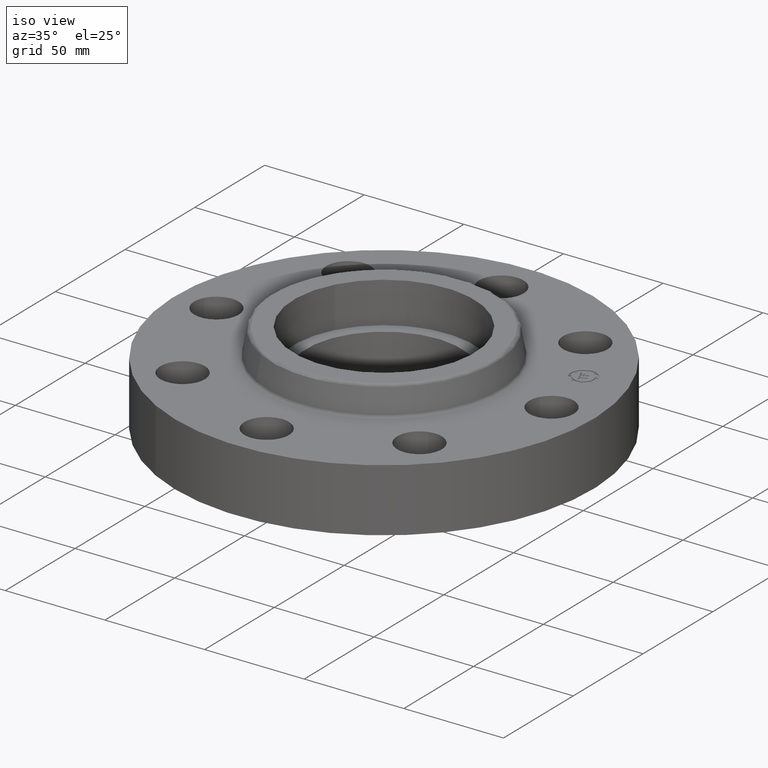
[diagram: clean part render]
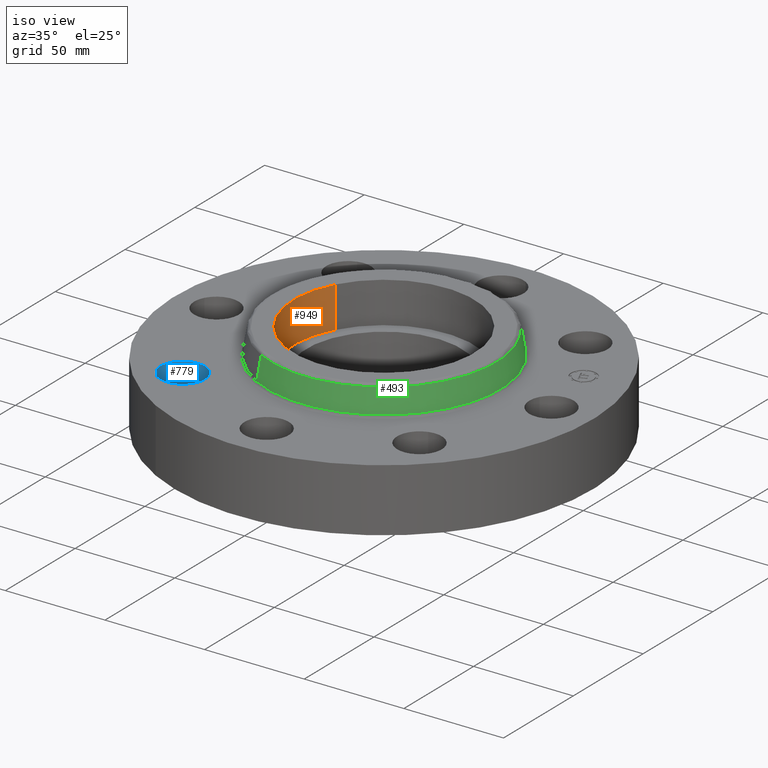
[diagram: same view with three faces highlighted in distinct colors, each labeled with its STEP entity id]
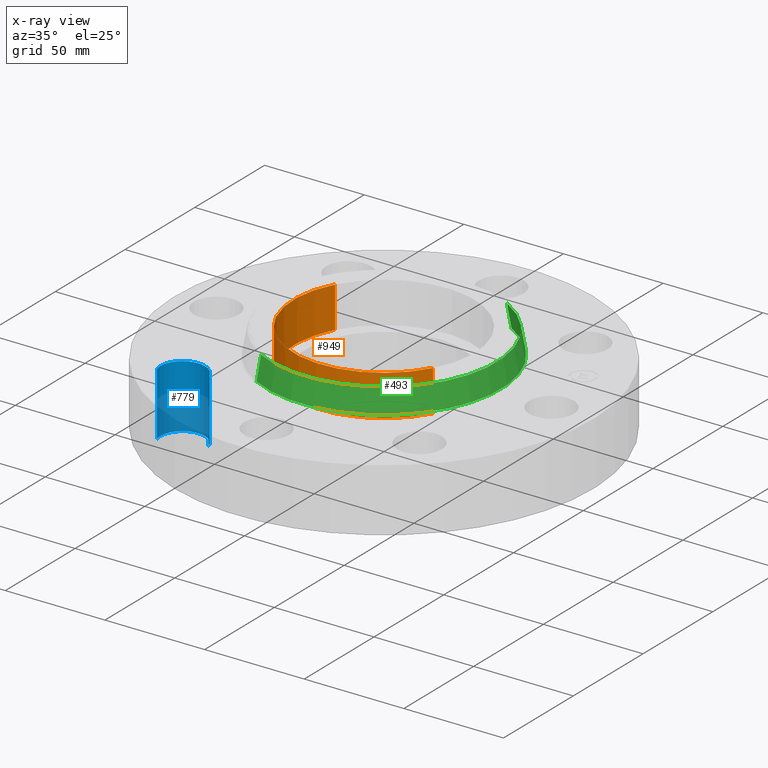
[diagram: x-ray of the same camera — body ghosted, the three highlighted faces saturated]
A machine part, iso view with three faces highlighted in distinct colors.
The next image is the same camera in x-ray (body ghosted, the three faces saturated) — at least one of them is partly hidden behind the body in this view.
Their STEP definitions:

[orange] entity #949 — the highlighted cylindrical surface (partial cylindrical patch) has radius 45.339 mm, axis along (0, 0, -1).
#51=AXIS2_PLACEMENT_3D('Circle Axis2P3D',#49,#50,$) ;
#569=AXIS2_PLACEMENT_3D('Circle Axis2P3D',#567,#568,$) ;
#924=AXIS2_PLACEMENT_3D('Cylinder Axis2P3D',#921,#922,#923) ;
#44=CARTESIAN_POINT('Vertex',(-1.56648487298,0.855774586412,1.)) ;
#46=CARTESIAN_POINT('Vertex',(1.56648487298,-0.855774586412,1.)) ;
#49=CARTESIAN_POINT('Axis2P3D Location',(1.39870617276E-016,3.84644197508E-016,1.)) ;
#562=CARTESIAN_POINT('Vertex',(-1.56648487298,0.855774586412,1.81000000001)) ;
#564=CARTESIAN_POINT('Vertex',(1.56648487298,-0.855774586412,1.81000000001)) ;
#567=CARTESIAN_POINT('Axis2P3D Location',(1.39870617276E-016,-5.59482469102E-016,1.81000000001)) ;
#921=CARTESIAN_POINT('Axis2P3D Location',(1.39870617276E-016,3.84644197508E-016,1.80606299213)) ;
#926=CARTESIAN_POINT('Line Origine',(-1.56648487298,0.855774586412,1.40500000001)) ;
#931=CARTESIAN_POINT('Line Origine',(1.56648487298,-0.855774586412,1.40500000001)) ;
#50=DIRECTION('Axis2P3D Direction',(0.,0.,-0.0393700787402)) ;
#568=DIRECTION('Axis2P3D Direction',(0.,0.,-0.0393700787402)) ;
#922=DIRECTION('Axis2P3D Direction',(0.,0.,-0.0393700787402)) ;
#923=DIRECTION('Axis2P3D XDirection',(0.0345504945626,-0.0188750212049,0.)) ;
#927=DIRECTION('Vector Direction',(0.,0.,-0.0393700787402)) ;
#932=DIRECTION('Vector Direction',(0.,0.,-0.0393700787402)) ;
#928=VECTOR('Line Direction',#927,0.0393700787402) ;
#933=VECTOR('Line Direction',#932,0.0393700787402) ;
#944=ORIENTED_EDGE('',*,*,#571,.F.) ;
#945=ORIENTED_EDGE('',*,*,#935,.F.) ;
#946=ORIENTED_EDGE('',*,*,#53,.T.) ;
#947=ORIENTED_EDGE('',*,*,#930,.T.) ;
#949=ADVANCED_FACE('PartBody',(#948),#925,.F.) ;
#52=CIRCLE('generated circle',#51,1.78500000001) ;
#570=CIRCLE('generated circle',#569,1.78500000001) ;
#925=CYLINDRICAL_SURFACE('generated cylinder',#924,1.78500000001) ;
#53=EDGE_CURVE('',#47,#45,#52,.T.) ;
#571=EDGE_CURVE('',#565,#563,#570,.T.) ;
#930=EDGE_CURVE('',#45,#563,#929,.F.) ;
#935=EDGE_CURVE('',#47,#565,#934,.F.) ;
#943=EDGE_LOOP('',(#944,#945,#946,#947)) ;
#948=FACE_OUTER_BOUND('',#943,.T.) ;
#929=LINE('Line',#926,#928) ;
#934=LINE('Line',#931,#933) ;
#45=VERTEX_POINT('',#44) ;
#47=VERTEX_POINT('',#46) ;
#563=VERTEX_POINT('',#562) ;
#565=VERTEX_POINT('',#564) ;

[blue] entity #779 — the highlighted cylindrical surface (edge-blend (fillet) strip) has radius 11.176 mm, axis along (-0, 0, -1).
#283=AXIS2_PLACEMENT_3D('Circle Axis2P3D',#281,#282,$) ;
#752=AXIS2_PLACEMENT_3D('Cylinder Axis2P3D',#749,#750,#751) ;
#770=AXIS2_PLACEMENT_3D('Circle Axis2P3D',#768,#769,$) ;
#276=CARTESIAN_POINT('Vertex',(-1.91832160854,-2.21664605203,0.)) ;
#278=CARTESIAN_POINT('Vertex',(-2.76272528293,-2.46440083944,0.)) ;
#281=CARTESIAN_POINT('Axis2P3D Location',(-2.34052344574,-2.34052344574,0.)) ;
#749=CARTESIAN_POINT('Axis2P3D Location',(-2.34052344574,-2.34052344574,1.24606299213)) ;
#754=CARTESIAN_POINT('Line Origine',(-2.76272528293,-2.46440083944,0.625000000003)) ;
#758=CARTESIAN_POINT('Vertex',(-2.76272528293,-2.46440083944,1.25000000001)) ;
#761=CARTESIAN_POINT('Line Origine',(-1.91832160854,-2.21664605203,0.625000000003)) ;
#765=CARTESIAN_POINT('Vertex',(-1.91832160854,-2.21664605203,1.25000000001)) ;
#768=CARTESIAN_POINT('Axis2P3D Location',(-2.34052344574,-2.34052344574,1.25000000001)) ;
#282=DIRECTION('Axis2P3D Direction',(0.,0.,-0.0393700787402)) ;
#750=DIRECTION('Axis2P3D Direction',(-0.,0.,-0.0393700787402)) ;
#751=DIRECTION('Axis2P3D XDirection',(0.0377775444876,0.0110842335096,-0.)) ;
#755=DIRECTION('Vector Direction',(0.,0.,-0.0393700787402)) ;
#762=DIRECTION('Vector Direction',(0.,0.,-0.0393700787402)) ;
#769=DIRECTION('Axis2P3D Direction',(-0.,0.,-0.0393700787402)) ;
#756=VECTOR('Line Direction',#755,0.0393700787402) ;
#763=VECTOR('Line Direction',#762,0.0393700787402) ;
#774=ORIENTED_EDGE('',*,*,#760,.F.) ;
#775=ORIENTED_EDGE('',*,*,#285,.T.) ;
#776=ORIENTED_EDGE('',*,*,#767,.T.) ;
#777=ORIENTED_EDGE('',*,*,#772,.F.) ;
#779=ADVANCED_FACE('PartBody',(#778),#753,.F.) ;
#284=CIRCLE('generated circle',#283,0.440000000002) ;
#771=CIRCLE('generated circle',#770,0.440000000002) ;
#753=CYLINDRICAL_SURFACE('generated cylinder',#752,0.440000000002) ;
#285=EDGE_CURVE('',#279,#277,#284,.T.) ;
#760=EDGE_CURVE('',#279,#759,#757,.F.) ;
#767=EDGE_CURVE('',#277,#766,#764,.F.) ;
#772=EDGE_CURVE('',#759,#766,#771,.T.) ;
#773=EDGE_LOOP('',(#774,#775,#776,#777)) ;
#778=FACE_OUTER_BOUND('',#773,.T.) ;
#757=LINE('Line',#754,#756) ;
#764=LINE('Line',#761,#763) ;
#277=VERTEX_POINT('',#276) ;
#279=VERTEX_POINT('',#278) ;
#759=VERTEX_POINT('',#758) ;
#766=VERTEX_POINT('',#765) ;

[green] entity #493 — the highlighted conical surface has half-angle 10 deg.
#429=AXIS2_PLACEMENT_3D('Circle Axis2P3D',#427,#428,$) ;
#466=AXIS2_PLACEMENT_3D('Cone Axis2P3D',#463,#464,#465) ;
#477=AXIS2_PLACEMENT_3D('Circle Axis2P3D',#475,#476,$) ;
#424=CARTESIAN_POINT('Vertex',(1.10328162249,2.01954346356,1.29958110935)) ;
#427=CARTESIAN_POINT('Axis2P3D Location',(0.,0.,1.29958110935)) ;
#431=CARTESIAN_POINT('Vertex',(-1.10328162249,-2.01954346356,1.29958110935)) ;
#463=CARTESIAN_POINT('Axis2P3D Location',(0.,0.,1.76041889067)) ;
#468=CARTESIAN_POINT('Line Origine',(1.08380301002,1.98388810261,1.53000000001)) ;
#472=CARTESIAN_POINT('Vertex',(1.06432439756,1.94823274165,1.76041889067)) ;
#475=CARTESIAN_POINT('Axis2P3D Location',(0.,0.,1.76041889067)) ;
#479=CARTESIAN_POINT('Vertex',(-1.06432439756,-1.94823274165,1.76041889067)) ;
#482=CARTESIAN_POINT('Line Origine',(-1.08380301002,-1.98388810261,1.53000000001)) ;
#428=DIRECTION('Axis2P3D Direction',(0.,0.,-0.0393700787402)) ;
#464=DIRECTION('Axis2P3D Direction',(0.,0.,-0.0393700787402)) ;
#465=DIRECTION('Axis2P3D XDirection',(-0.0188750212049,-0.0345504945626,0.)) ;
#469=DIRECTION('Vector Direction',(0.00327761303565,0.00599963041829,-0.03877195878)) ;
#476=DIRECTION('Axis2P3D Direction',(0.,0.,-0.0393700787402)) ;
#483=DIRECTION('Vector Direction',(-0.00327761303565,-0.00599963041829,-0.03877195878)) ;
#470=VECTOR('Line Direction',#469,0.0393700787402) ;
#484=VECTOR('Line Direction',#483,0.0393700787402) ;
#488=ORIENTED_EDGE('',*,*,#433,.F.) ;
#489=ORIENTED_EDGE('',*,*,#474,.T.) ;
#490=ORIENTED_EDGE('',*,*,#481,.T.) ;
#491=ORIENTED_EDGE('',*,*,#486,.F.) ;
#493=ADVANCED_FACE('PartBody',(#492),#467,.T.) ;
#430=CIRCLE('generated circle',#429,2.3012575127) ;
#478=CIRCLE('generated circle',#477,2.21999937812) ;
#467=CONICAL_SURFACE('Cone',#466,2.21999937812,0.174532925199) ;
#433=EDGE_CURVE('',#425,#432,#430,.T.) ;
#474=EDGE_CURVE('',#425,#473,#471,.F.) ;
#481=EDGE_CURVE('',#473,#480,#478,.T.) ;
#486=EDGE_CURVE('',#432,#480,#485,.F.) ;
#487=EDGE_LOOP('',(#488,#489,#490,#491)) ;
#492=FACE_OUTER_BOUND('',#487,.T.) ;
#471=LINE('Line',#468,#470) ;
#485=LINE('Line',#482,#484) ;
#425=VERTEX_POINT('',#424) ;
#432=VERTEX_POINT('',#431) ;
#473=VERTEX_POINT('',#472) ;
#480=VERTEX_POINT('',#479) ;